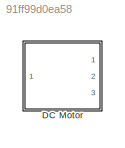
MODEL slx_91ff99d0ea58
KIND model
CONFIG AbsTol = auto
CONFIG FixedStep = auto
CONFIG MaxStep = auto
CONFIG MinStep = auto
CONFIG RelTol = 1e-3
CONFIG SampleTimeConstraint = Unconstrained
CONFIG Solver = VariableStepAuto
CONFIG SolverMode = Auto
CONFIG SolverName = VariableStepAuto
CONFIG StartTime = 0.0
CONFIG StopTime = 10.0
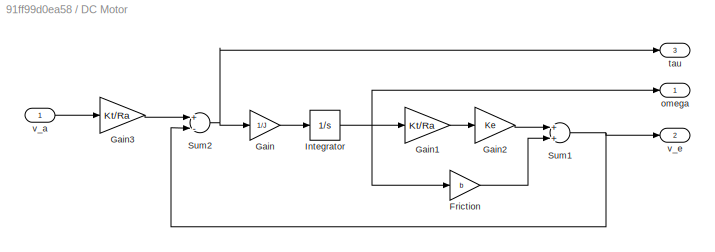
BLOCK [SubSystem] DC Motor
  Ports = [1, 3]
  RequestExecContextInheritance = off
  Variant = off
BLOCK [Gain] DC Motor/Friction
  Gain = b
  OutDataTypeStr = Inherit: Inherit via internal rule
  ParamDataTypeStr = Inherit: Inherit via internal rule
  SaturateOnIntegerOverflow = off
BLOCK [Gain] DC Motor/Gain
  Gain = 1/J
  OutDataTypeStr = Inherit: Inherit via internal rule
  ParamDataTypeStr = Inherit: Inherit via internal rule
  SaturateOnIntegerOverflow = off
BLOCK [Gain] DC Motor/Gain1
  Gain = Kt/Ra
  OutDataTypeStr = Inherit: Inherit via internal rule
  ParamDataTypeStr = Inherit: Inherit via internal rule
  SaturateOnIntegerOverflow = off
BLOCK [Gain] DC Motor/Gain2
  Gain = Ke
  OutDataTypeStr = Inherit: Inherit via internal rule
  ParamDataTypeStr = Inherit: Inherit via internal rule
  SaturateOnIntegerOverflow = off
BLOCK [Gain] DC Motor/Gain3
  Gain = Kt/Ra
  OutDataTypeStr = Inherit: Inherit via internal rule
  ParamDataTypeStr = Inherit: Inherit via internal rule
  SaturateOnIntegerOverflow = off
BLOCK [Integrator] DC Motor/Integrator
  Ports = [1, 1]
BLOCK [Sum] DC Motor/Sum1
  InputSameDT = off
  OutDataTypeStr = Inherit: Inherit via internal rule
  Ports = [2, 1]
  SaturateOnIntegerOverflow = off
BLOCK [Sum] DC Motor/Sum2
  InputSameDT = off
  Inputs = +-
  OutDataTypeStr = Inherit: Inherit via internal rule
  Ports = [2, 1]
  SaturateOnIntegerOverflow = off
BLOCK [Outport] DC Motor/omega
  IconDisplay = Port number
BLOCK [Outport] DC Motor/tau
  IconDisplay = Port number
  Port = 3
BLOCK [Inport] DC Motor/v_a
  IconDisplay = Port number
BLOCK [Outport] DC Motor/v_e
  IconDisplay = Port number
  Port = 2
LINE DC Motor/Friction:1 -> DC Motor/Sum1:2
LINE DC Motor/Gain1:1 -> DC Motor/Gain2:1
LINE DC Motor/Gain2:1 -> DC Motor/Sum1:1
LINE DC Motor/Gain3:1 -> DC Motor/Sum2:1
LINE DC Motor/Gain:1 -> DC Motor/Integrator:1
NET DC Motor/Integrator:1 -> DC Motor/Friction:1, DC Motor/Gain1:1, DC Motor/omega:1
NET DC Motor/Sum1:1 -> DC Motor/Sum2:2, DC Motor/v_e:1
NET DC Motor/Sum2:1 -> DC Motor/Gain:1, DC Motor/tau:1
LINE DC Motor/v_a:1 -> DC Motor/Gain3:1
note: NET lines group one-source signal fan-out (src -> all destinations, sorted); 1:1 wires keep LINE
